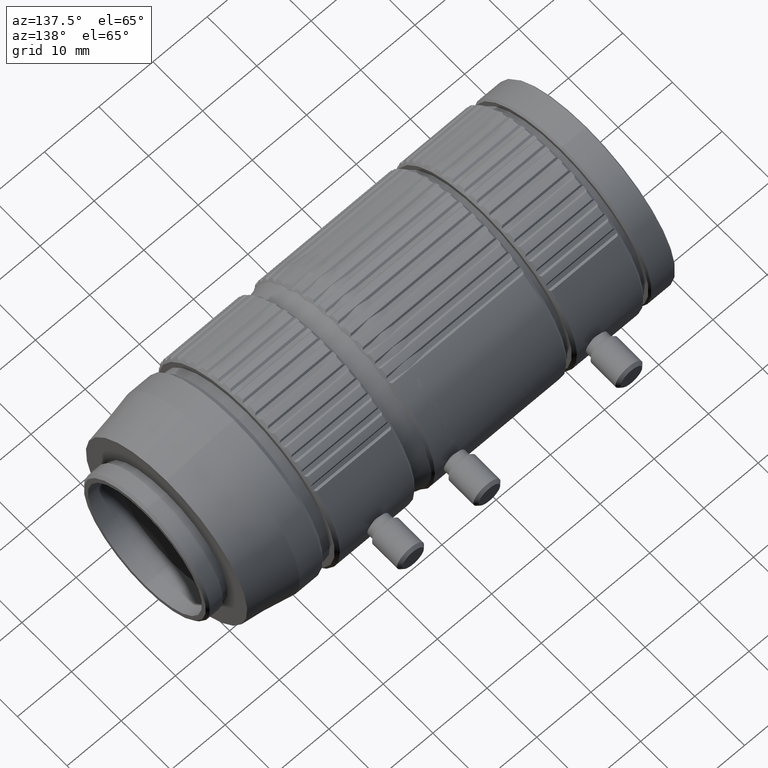
[diagram: clean part render]
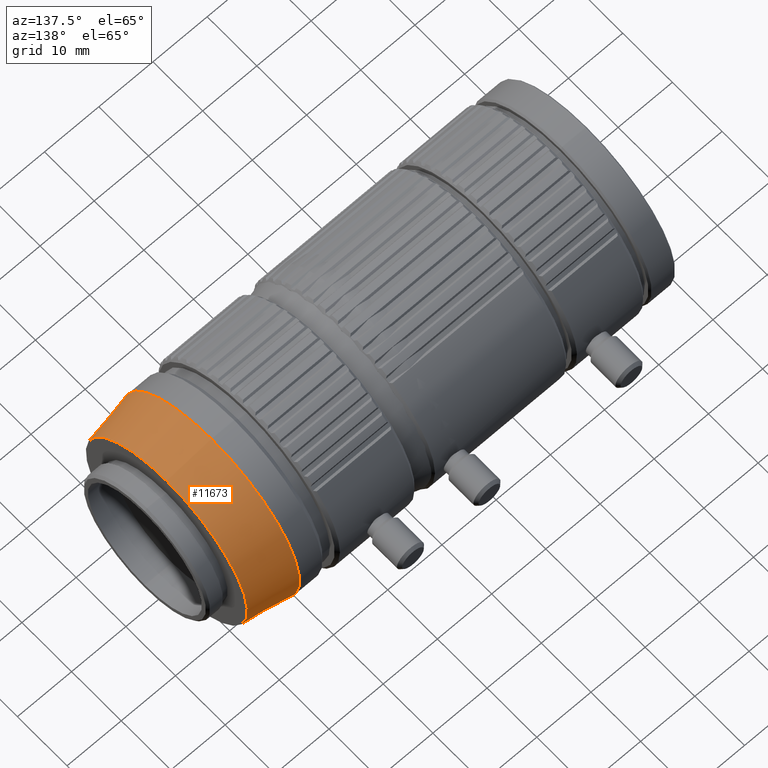
[diagram: same view with one face highlighted and labeled with its STEP entity id]
A machine part, auxiliary view. The second image highlights one B-rep face of the part: STEP entity #11673.
In plain terms, the highlighted conical surface has half-angle 10.244 deg.
Its self-contained STEP definition (entity closure, byte-faithful):
#31=CONICAL_SURFACE('',#12667,17.75,0.178793054802921);
#2491=ORIENTED_EDGE('',*,*,#4831,.F.);
#2492=ORIENTED_EDGE('',*,*,#4830,.T.);
#4830=EDGE_CURVE('',#5913,#5913,#6453,.T.);
#4831=EDGE_CURVE('',#5914,#5914,#6454,.T.);
#5913=VERTEX_POINT('',#18565);
#5914=VERTEX_POINT('',#18568);
#6453=CIRCLE('',#12666,16.25);
#6454=CIRCLE('',#12668,17.75);
#7056=EDGE_LOOP('',(#2491));
#7057=EDGE_LOOP('',(#2492));
#7595=FACE_BOUND('',#7056,.T.);
#7596=FACE_BOUND('',#7057,.T.);
#11673=ADVANCED_FACE('',(#7595,#7596),#31,.T.);
#12666=AXIS2_PLACEMENT_3D('',#18564,#15146,#15147);
#12667=AXIS2_PLACEMENT_3D('',#18566,#15148,#15149);
#12668=AXIS2_PLACEMENT_3D('',#18567,#15150,#15151);
#15146=DIRECTION('',(-1.,0.,0.));
#15147=DIRECTION('',(0.,0.,1.));
#15148=DIRECTION('',(-1.,0.,0.));
#15149=DIRECTION('',(0.,0.,1.));
#15150=DIRECTION('',(-1.,0.,0.));
#15151=DIRECTION('',(0.,0.,1.));
#18564=CARTESIAN_POINT('',(-17.526,0.,0.));
#18565=CARTESIAN_POINT('',(-17.526,0.,16.25));
#18566=CARTESIAN_POINT('',(-25.826,0.,0.));
#18567=CARTESIAN_POINT('',(-25.826,0.,0.));
#18568=CARTESIAN_POINT('',(-25.826,0.,17.75));